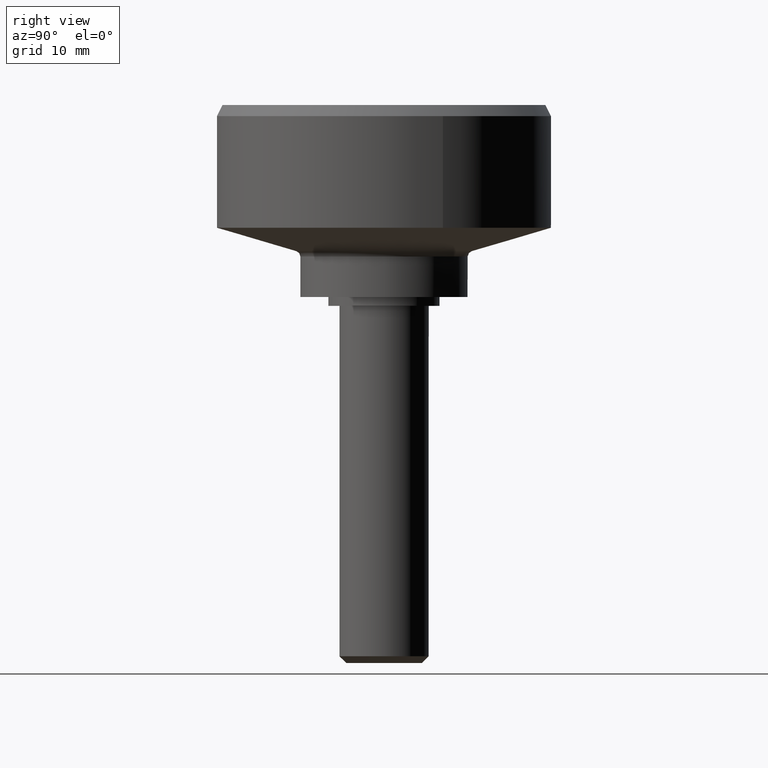
[diagram: clean part render]
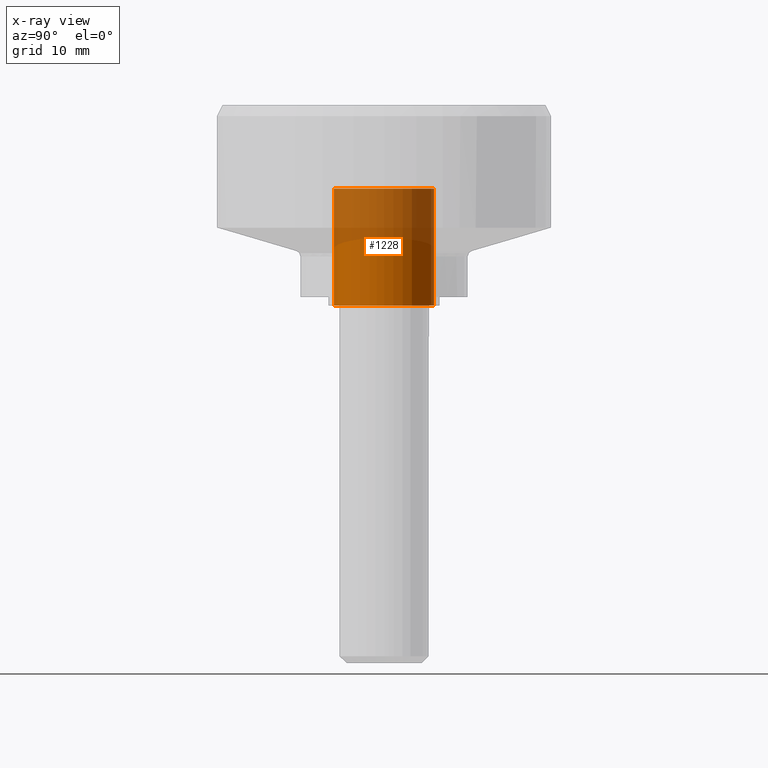
[diagram: x-ray — body ghosted, one internal face saturated and labeled with its STEP entity id]
A machine part, right view, then the same camera in x-ray: the body is ghosted and one INTERNAL B-rep face — a face not visible from any outside direction — is saturated and labeled: STEP entity #1228.
In plain terms, the highlighted face is a freeform B-spline surface patch.
Its self-contained STEP definition (entity closure, byte-faithful):
#1067=CARTESIAN_POINT('',(-0.353065930823044,-4.486128001795318,10.500000000000000));
#1068=VERTEX_POINT('',#1067);
#1082=CARTESIAN_POINT('',(-0.353065930823044,-4.486128001795318,-5.551115E-017));
#1083=VERTEX_POINT('',#1082);
#1084=CARTESIAN_POINT('',(-0.353065930823044,-4.486128001795318,10.500000000000000));
#1085=CARTESIAN_POINT('',(-0.353065930823044,-4.486128001795318,-5.551115E-017));
#1086=QUASI_UNIFORM_CURVE('',1,(#1084,#1085),.UNSPECIFIED.,.F.,.U.);
#1087=EDGE_CURVE('',#1068,#1083,#1086,.T.);
#1104=CARTESIAN_POINT('',(0.353065930823043,4.486128001795318,-5.551115E-017));
#1105=VERTEX_POINT('',#1104);
#1121=CARTESIAN_POINT('',(0.353065930823044,4.486128001795318,10.500000000000000));
#1122=VERTEX_POINT('',#1121);
#1123=CARTESIAN_POINT('',(0.353065930823044,4.486128001795318,10.500000000000000));
#1124=CARTESIAN_POINT('',(0.353065930823043,4.486128001795318,-5.551115E-017));
#1125=QUASI_UNIFORM_CURVE('',1,(#1123,#1124),.UNSPECIFIED.,.F.,.U.);
#1126=EDGE_CURVE('',#1122,#1105,#1125,.T.);
#1146=CARTESIAN_POINT('',(0.353065930775305,4.486128001799074,10.762499999999999));
#1147=CARTESIAN_POINT('',(4.839193932574379,4.133062071023770,10.762500000000003));
#1148=CARTESIAN_POINT('',(4.486128001799074,-0.353065930775305,10.762499999999999));
#1149=CARTESIAN_POINT('',(4.133062071023770,-4.839193932574379,10.762500000000003));
#1150=CARTESIAN_POINT('',(-0.353065930775305,-4.486128001799074,10.762499999999999));
#1151=CARTESIAN_POINT('',(0.353065930775305,4.486128001799074,-0.269062500000000));
#1152=CARTESIAN_POINT('',(4.839193932574379,4.133062071023770,-0.269062500000000));
#1153=CARTESIAN_POINT('',(4.486128001799074,-0.353065930775305,-0.269062500000000));
#1154=CARTESIAN_POINT('',(4.133062071023770,-4.839193932574379,-0.269062500000000));
#1155=CARTESIAN_POINT('',(-0.353065930775305,-4.486128001799074,-0.269062500000000));
#1163=(BOUNDED_SURFACE()B_SPLINE_SURFACE(2,1,((#1146,#1151),(#1147,#1152),(#1148,#1153),(#1149,#1154),(#1150,#1155)),.UNSPECIFIED.,.F.,.F.,.U.)B_SPLINE_SURFACE_WITH_KNOTS((3,2,3),(2,2),(0.0,7.455844122715707,14.911688245431410),(0.0,11.031562500000010),.UNSPECIFIED.)GEOMETRIC_REPRESENTATION_ITEM()RATIONAL_B_SPLINE_SURFACE(((1.0,1.0),(0.707106781186548,0.707106781186548),(1.0,1.0),(0.707106781186548,0.707106781186548),(1.0,1.0)))REPRESENTATION_ITEM('')SURFACE());
#1164=CARTESIAN_POINT('',(4.500000000000000,0.0,10.500000000000000));
#1165=VERTEX_POINT('',#1164);
#1166=CARTESIAN_POINT('',(-0.353065930823044,-4.486128001795318,10.500000000000005));
#1167=CARTESIAN_POINT('',(-0.176805481582475,-4.500000000000001,10.500000000000000));
#1168=CARTESIAN_POINT('',(0.0,-4.500000000000000,10.500000000000000));
#1169=CARTESIAN_POINT('',(4.500000000000000,-4.500000000000000,10.500000000000000));
#1170=CARTESIAN_POINT('',(4.500000000000000,0.0,10.500000000000000));
#1178=(BOUNDED_CURVE()B_SPLINE_CURVE(2,(#1166,#1167,#1168,#1169,#1170),.UNSPECIFIED.,.F.,.U.)B_SPLINE_CURVE_WITH_KNOTS((3,2,3),(0.236331300629118,0.250000000000000,0.500000000000000),.UNSPECIFIED.)CURVE()GEOMETRIC_REPRESENTATION_ITEM()RATIONAL_B_SPLINE_CURVE((0.969723356164201,0.983986122577076,1.0,0.707106781186547,1.0))REPRESENTATION_ITEM(''));
#1179=EDGE_CURVE('',#1068,#1165,#1178,.T.);
#1180=ORIENTED_EDGE('',*,*,#1179,.T.);
#1181=CARTESIAN_POINT('',(4.500000000000000,0.0,10.500000000000000));
#1182=CARTESIAN_POINT('',(4.500000000000002,4.159757212373114,10.500000000000000));
#1183=CARTESIAN_POINT('',(0.353065930823044,4.486128001795318,10.499999999999998));
#1191=(BOUNDED_CURVE()B_SPLINE_CURVE(2,(#1181,#1182,#1183),.UNSPECIFIED.,.F.,.U.)B_SPLINE_CURVE_WITH_KNOTS((3,3),(0.500000000000000,0.736331300629118),.UNSPECIFIED.)CURVE()GEOMETRIC_REPRESENTATION_ITEM()RATIONAL_B_SPLINE_CURVE((1.0,0.723120658609472,0.969723356164200))REPRESENTATION_ITEM(''));
#1192=EDGE_CURVE('',#1165,#1122,#1191,.T.);
#1193=ORIENTED_EDGE('',*,*,#1192,.T.);
#1194=ORIENTED_EDGE('',*,*,#1126,.T.);
#1195=CARTESIAN_POINT('',(4.500000000000000,0.0,0.0));
#1196=VERTEX_POINT('',#1195);
#1197=CARTESIAN_POINT('',(4.500000000000000,0.0,0.0));
#1198=CARTESIAN_POINT('',(4.500000000000002,4.159757212373114,0.0));
#1199=CARTESIAN_POINT('',(0.353065930823043,4.486128001795318,-5.551115E-017));
#1207=(BOUNDED_CURVE()B_SPLINE_CURVE(2,(#1197,#1198,#1199),.UNSPECIFIED.,.F.,.U.)B_SPLINE_CURVE_WITH_KNOTS((3,3),(0.500000000000000,0.736331300629118),.UNSPECIFIED.)CURVE()GEOMETRIC_REPRESENTATION_ITEM()RATIONAL_B_SPLINE_CURVE((1.0,0.723120658609472,0.969723356164200))REPRESENTATION_ITEM(''));
#1208=EDGE_CURVE('',#1196,#1105,#1207,.T.);
#1209=ORIENTED_EDGE('',*,*,#1208,.F.);
#1210=CARTESIAN_POINT('',(-0.353065930823044,-4.486128001795318,-5.551115E-017));
#1211=CARTESIAN_POINT('',(-0.176805481582475,-4.500000000000001,0.0));
#1212=CARTESIAN_POINT('',(0.0,-4.500000000000000,0.0));
#1213=CARTESIAN_POINT('',(4.500000000000000,-4.500000000000000,0.0));
#1214=CARTESIAN_POINT('',(4.500000000000000,0.0,0.0));
#1222=(BOUNDED_CURVE()B_SPLINE_CURVE(2,(#1210,#1211,#1212,#1213,#1214),.UNSPECIFIED.,.F.,.U.)B_SPLINE_CURVE_WITH_KNOTS((3,2,3),(0.236331300629118,0.250000000000000,0.500000000000000),.UNSPECIFIED.)CURVE()GEOMETRIC_REPRESENTATION_ITEM()RATIONAL_B_SPLINE_CURVE((0.969723356164201,0.983986122577076,1.0,0.707106781186547,1.0))REPRESENTATION_ITEM(''));
#1223=EDGE_CURVE('',#1083,#1196,#1222,.T.);
#1224=ORIENTED_EDGE('',*,*,#1223,.F.);
#1225=ORIENTED_EDGE('',*,*,#1087,.F.);
#1226=EDGE_LOOP('',(#1180,#1193,#1194,#1209,#1224,#1225));
#1227=FACE_OUTER_BOUND('',#1226,.T.);
#1228=ADVANCED_FACE('',(#1227),#1163,.F.);